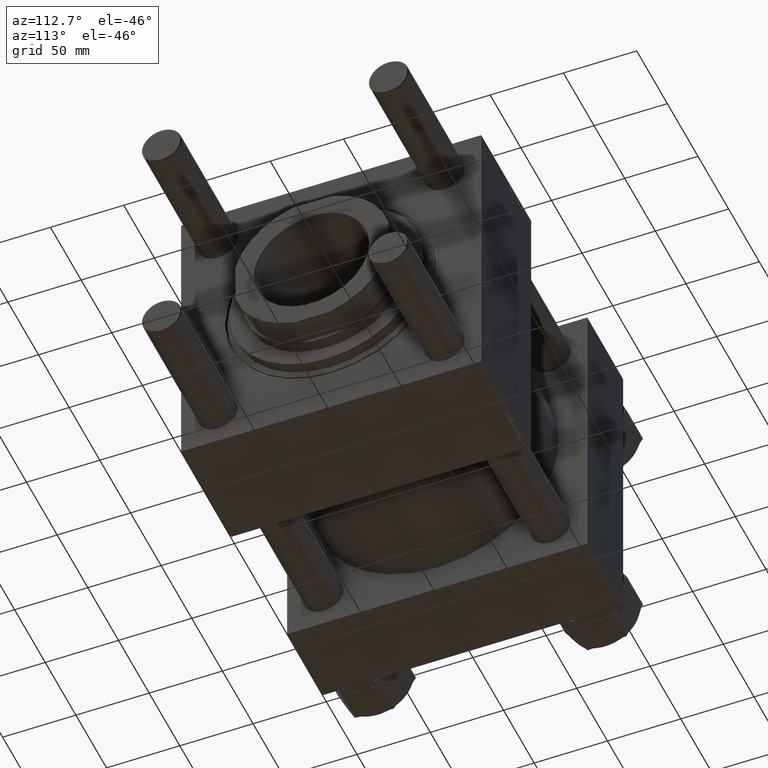
[diagram: clean part render]
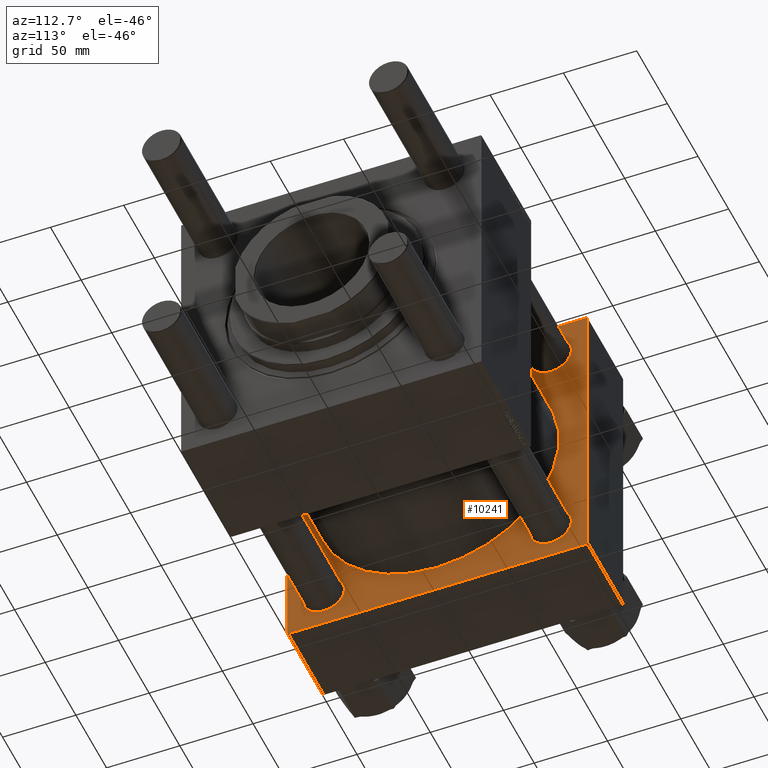
[diagram: same view with one face highlighted and labeled with its STEP entity id]
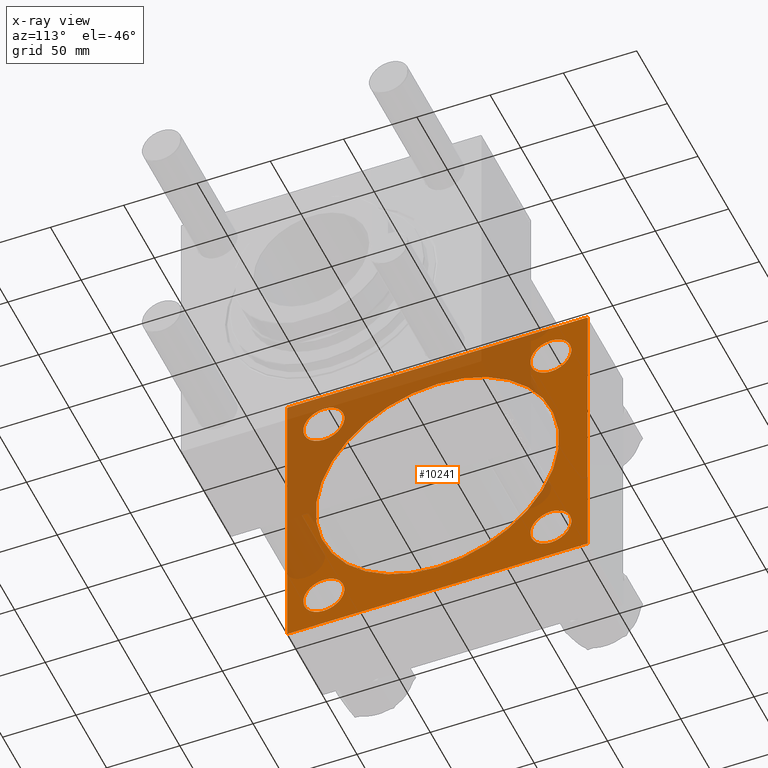
[diagram: x-ray of the same camera — body ghosted, the highlighted face saturated]
A machine part, auxiliary view. The second image highlights one B-rep face of the part: STEP entity #10241.
The next image is the same camera in x-ray: the body ghosted, the highlighted face saturated — about 43% of this face is hidden behind the body in this view.
In plain terms, the highlighted planar face has unit normal (-1, 0, 0).
Its self-contained STEP definition (entity closure, byte-faithful):
#520 = CARTESIAN_POINT ( 'NONE',  ( 58.00000000000000000, -101.9999999999999147, 102.5000000000000000 ) ) ;
#1236 = ORIENTED_EDGE ( 'NONE', *, *, #1803, .T. ) ;
#1621 = ORIENTED_EDGE ( 'NONE', *, *, #54866, .T. ) ;
#1803 = EDGE_CURVE ( 'NONE', #18293, #57033, #45750, .T. ) ;
#2307 = EDGE_LOOP ( 'NONE', ( #53652, #6406 ) ) ;
#2427 = AXIS2_PLACEMENT_3D ( 'NONE', #40914, #40352, #36013 ) ;
#2539 = EDGE_CURVE ( 'NONE', #17715, #33376, #13695, .T. ) ;
#3229 = AXIS2_PLACEMENT_3D ( 'NONE', #56046, #16404, #25377 ) ;
#3384 = CIRCLE ( 'NONE', #34810, 13.99999999999979039 ) ;
#3720 = PLANE ( 'NONE',  #33292 ) ;
#4241 = EDGE_LOOP ( 'NONE', ( #39235, #32686, #34683, #34279, #47452, #1621, #21113, #1236 ) ) ;
#4585 = LINE ( 'NONE', #22827, #5696 ) ;
#4822 = DIRECTION ( 'NONE',  ( 0.000000000000000000, 0.000000000000000000, 1.000000000000000000 ) ) ;
#4973 = CARTESIAN_POINT ( 'NONE',  ( 58.00000000000000000, -101.9999999999999432, -102.5000000000000000 ) ) ;
#5147 = DIRECTION ( 'NONE',  ( 0.000000000000000000, 0.000000000000000000, 1.000000000000000000 ) ) ;
#5165 = LINE ( 'NONE', #22831, #46475 ) ;
#5696 = VECTOR ( 'NONE', #40202, 1000.000000000000114 ) ;
#5759 = ORIENTED_EDGE ( 'NONE', *, *, #36333, .T. ) ;
#6406 = ORIENTED_EDGE ( 'NONE', *, *, #30487, .F. ) ;
#6607 = CIRCLE ( 'NONE', #26986, 13.99999999999979039 ) ;
#8065 = CARTESIAN_POINT ( 'NONE',  ( 58.00000000000000000, 0.000000000000000000, 0.000000000000000000 ) ) ;
#8290 = DIRECTION ( 'NONE',  ( 0.000000000000000000, 0.000000000000000000, 1.000000000000000000 ) ) ;
#9291 = AXIS2_PLACEMENT_3D ( 'NONE', #13273, #12716, #39912 ) ;
#9597 = CARTESIAN_POINT ( 'NONE',  ( 57.99999999999999289, 7.562483218957820855E-15, -83.00000000000000000 ) ) ;
#9768 = DIRECTION ( 'NONE',  ( -1.000000000000000000, 0.000000000000000000, 0.000000000000000000 ) ) ;
#10241 = ADVANCED_FACE ( 'NONE', ( #52056, #47714, #29794, #12413, #34995, #51775 ), #3720, .F. ) ;
#10323 = VECTOR ( 'NONE', #40089, 1000.000000000000000 ) ;
#10603 = AXIS2_PLACEMENT_3D ( 'NONE', #12361, #56067, #8290 ) ;
#10774 = EDGE_CURVE ( 'NONE', #33376, #51628, #55048, .T. ) ;
#11062 = CARTESIAN_POINT ( 'NONE',  ( 58.00000000000000000, 102.5000000000000284, 102.5000000000000284 ) ) ;
#11936 = EDGE_CURVE ( 'NONE', #17646, #35854, #37028, .T. ) ;
#12361 = CARTESIAN_POINT ( 'NONE',  ( 58.00000000000000000, -77.44999999999996021, 77.45000000000003126 ) ) ;
#12413 = FACE_BOUND ( 'NONE', #17548, .T. ) ;
#12540 = EDGE_CURVE ( 'NONE', #22166, #47352, #42584, .T. ) ;
#12638 = AXIS2_PLACEMENT_3D ( 'NONE', #22779, #27686, #4822 ) ;
#12696 = DIRECTION ( 'NONE',  ( -1.000000000000000000, 0.000000000000000000, 0.000000000000000000 ) ) ;
#12716 = DIRECTION ( 'NONE',  ( -1.000000000000000000, 0.000000000000000000, 0.000000000000000000 ) ) ;
#12781 = CARTESIAN_POINT ( 'NONE',  ( 58.00000000000000000, 77.44999999999998863, 77.45000000000001705 ) ) ;
#12967 = AXIS2_PLACEMENT_3D ( 'NONE', #28328, #27752, #45389 ) ;
#13273 = CARTESIAN_POINT ( 'NONE',  ( 58.00000000000000000, 77.44999999999998863, -77.45000000000001705 ) ) ;
#13386 = ORIENTED_EDGE ( 'NONE', *, *, #39832, .T. ) ;
#13410 = DIRECTION ( 'NONE',  ( 0.000000000000000000, -0.7071067811865474617, 0.7071067811865474617 ) ) ;
#13695 = LINE ( 'NONE', #40907, #38808 ) ;
#16036 = LINE ( 'NONE', #55384, #47793 ) ;
#16133 = CARTESIAN_POINT ( 'NONE',  ( 58.00000000000000000, 102.0000000000000142, -102.4999999999999716 ) ) ;
#16339 = EDGE_CURVE ( 'NONE', #46490, #31109, #6607, .T. ) ;
#16404 = DIRECTION ( 'NONE',  ( 1.000000000000000000, -0.000000000000000000, -0.000000000000000000 ) ) ;
#17052 = DIRECTION ( 'NONE',  ( 0.000000000000000000, -1.353930517835556973E-16, -1.000000000000000000 ) ) ;
#17086 = CIRCLE ( 'NONE', #10603, 13.99999999999979039 ) ;
#17548 = EDGE_LOOP ( 'NONE', ( #5759, #43571 ) ) ;
#17646 = VERTEX_POINT ( 'NONE', #35334 ) ;
#17715 = VERTEX_POINT ( 'NONE', #30986 ) ;
#18293 = VERTEX_POINT ( 'NONE', #29822 ) ;
#18450 = CARTESIAN_POINT ( 'NONE',  ( 58.00000000000000000, -77.44999999999996021, 63.45000000000024443 ) ) ;
#18456 = CARTESIAN_POINT ( 'NONE',  ( 58.00000000000000000, -77.44999999999996021, -77.45000000000003126 ) ) ;
#18920 = CIRCLE ( 'NONE', #3229, 83.00000000000000000 ) ;
#19333 = VERTEX_POINT ( 'NONE', #40859 ) ;
#19647 = EDGE_LOOP ( 'NONE', ( #27070, #35818 ) ) ;
#19800 = DIRECTION ( 'NONE',  ( 0.000000000000000000, 0.000000000000000000, -1.000000000000000000 ) ) ;
#20005 = CIRCLE ( 'NONE', #44949, 13.99999999999979039 ) ;
#20199 = EDGE_CURVE ( 'NONE', #51685, #57033, #43858, .T. ) ;
#21027 = VERTEX_POINT ( 'NONE', #28393 ) ;
#21113 = ORIENTED_EDGE ( 'NONE', *, *, #24958, .T. ) ;
#21958 = DIRECTION ( 'NONE',  ( 0.000000000000000000, 0.000000000000000000, 1.000000000000000000 ) ) ;
#22020 = CARTESIAN_POINT ( 'NONE',  ( 58.00000000000000000, 77.44999999999998863, 91.44999999999980389 ) ) ;
#22166 = VERTEX_POINT ( 'NONE', #39291 ) ;
#22779 = CARTESIAN_POINT ( 'NONE',  ( 58.00000000000000000, 77.44999999999998863, 77.45000000000001705 ) ) ;
#22816 = DIRECTION ( 'NONE',  ( 0.000000000000000000, 0.000000000000000000, 1.000000000000000000 ) ) ;
#22827 = CARTESIAN_POINT ( 'NONE',  ( 58.00000000000000000, 102.5000000000000284, -101.9999999999999716 ) ) ;
#22831 = CARTESIAN_POINT ( 'NONE',  ( 58.00000000000000000, -102.4999999999999716, 102.5000000000000000 ) ) ;
#24016 = VECTOR ( 'NONE', #33670, 1000.000000000000000 ) ;
#24958 = EDGE_CURVE ( 'NONE', #21027, #18293, #5165, .T. ) ;
#25377 = DIRECTION ( 'NONE',  ( 0.000000000000000000, 0.000000000000000000, 1.000000000000000000 ) ) ;
#25743 = VERTEX_POINT ( 'NONE', #33618 ) ;
#26366 = LINE ( 'NONE', #26929, #34635 ) ;
#26929 = CARTESIAN_POINT ( 'NONE',  ( 58.00000000000000000, -102.4999999999999716, 102.0000000000000000 ) ) ;
#26986 = AXIS2_PLACEMENT_3D ( 'NONE', #51342, #29367, #37452 ) ;
#27070 = ORIENTED_EDGE ( 'NONE', *, *, #34850, .T. ) ;
#27266 = DIRECTION ( 'NONE',  ( 0.000000000000000000, 0.7071067811865474617, -0.7071067811865474617 ) ) ;
#27686 = DIRECTION ( 'NONE',  ( -1.000000000000000000, 0.000000000000000000, 0.000000000000000000 ) ) ;
#27752 = DIRECTION ( 'NONE',  ( 1.000000000000000000, -0.000000000000000000, -0.000000000000000000 ) ) ;
#28328 = CARTESIAN_POINT ( 'NONE',  ( 57.99999999999999289, -2.602085213965210642E-15, 0.000000000000000000 ) ) ;
#28393 = CARTESIAN_POINT ( 'NONE',  ( 58.00000000000000000, -102.4999999999999716, 102.0000000000000000 ) ) ;
#29313 = EDGE_LOOP ( 'NONE', ( #56182, #56289 ) ) ;
#29367 = DIRECTION ( 'NONE',  ( -1.000000000000000000, 0.000000000000000000, 0.000000000000000000 ) ) ;
#29794 = FACE_BOUND ( 'NONE', #19647, .T. ) ;
#29822 = CARTESIAN_POINT ( 'NONE',  ( 58.00000000000000000, -102.5000000000000000, -101.9999999999998863 ) ) ;
#30487 = EDGE_CURVE ( 'NONE', #47352, #22166, #18920, .T. ) ;
#30986 = CARTESIAN_POINT ( 'NONE',  ( 58.00000000000000000, 102.5000000000000284, 102.0000000000000142 ) ) ;
#31109 = VERTEX_POINT ( 'NONE', #39686 ) ;
#32686 = ORIENTED_EDGE ( 'NONE', *, *, #43394, .T. ) ;
#32927 = CARTESIAN_POINT ( 'NONE',  ( 58.00000000000000000, 77.44999999999998863, -77.45000000000001705 ) ) ;
#33292 = AXIS2_PLACEMENT_3D ( 'NONE', #8065, #12696, #21958 ) ;
#33376 = VERTEX_POINT ( 'NONE', #51911 ) ;
#33618 = CARTESIAN_POINT ( 'NONE',  ( 58.00000000000000000, 102.5000000000000284, -101.9999999999999147 ) ) ;
#33670 = DIRECTION ( 'NONE',  ( 0.000000000000000000, -1.000000000000000000, -1.353930517835556973E-16 ) ) ;
#34279 = ORIENTED_EDGE ( 'NONE', *, *, #2539, .T. ) ;
#34635 = VECTOR ( 'NONE', #40540, 1000.000000000000114 ) ;
#34683 = ORIENTED_EDGE ( 'NONE', *, *, #37031, .F. ) ;
#34810 = AXIS2_PLACEMENT_3D ( 'NONE', #18456, #9768, #5147 ) ;
#34850 = EDGE_CURVE ( 'NONE', #37903, #46064, #50472, .T. ) ;
#34995 = FACE_BOUND ( 'NONE', #2307, .T. ) ;
#35029 = EDGE_CURVE ( 'NONE', #38290, #19333, #56025, .T. ) ;
#35334 = CARTESIAN_POINT ( 'NONE',  ( 58.00000000000000000, 77.44999999999998863, -91.44999999999980389 ) ) ;
#35818 = ORIENTED_EDGE ( 'NONE', *, *, #56360, .T. ) ;
#35854 = VERTEX_POINT ( 'NONE', #52434 ) ;
#36013 = DIRECTION ( 'NONE',  ( 0.000000000000000000, 0.000000000000000000, 1.000000000000000000 ) ) ;
#36333 = EDGE_CURVE ( 'NONE', #19333, #38290, #38534, .T. ) ;
#37028 = CIRCLE ( 'NONE', #9291, 13.99999999999979039 ) ;
#37031 = EDGE_CURVE ( 'NONE', #17715, #25743, #16036, .T. ) ;
#37065 = CARTESIAN_POINT ( 'NONE',  ( 58.00000000000000000, -101.9999999999999432, -102.5000000000000000 ) ) ;
#37452 = DIRECTION ( 'NONE',  ( 0.000000000000000000, 0.000000000000000000, 1.000000000000000000 ) ) ;
#37903 = VERTEX_POINT ( 'NONE', #18450 ) ;
#38125 = ORIENTED_EDGE ( 'NONE', *, *, #16339, .T. ) ;
#38290 = VERTEX_POINT ( 'NONE', #22020 ) ;
#38534 = CIRCLE ( 'NONE', #12638, 13.99999999999979039 ) ;
#38808 = VECTOR ( 'NONE', #13410, 1000.000000000000114 ) ;
#39235 = ORIENTED_EDGE ( 'NONE', *, *, #20199, .F. ) ;
#39291 = CARTESIAN_POINT ( 'NONE',  ( 57.99999999999999289, -2.602085213965210642E-15, 83.00000000000000000 ) ) ;
#39514 = CARTESIAN_POINT ( 'NONE',  ( 58.00000000000000000, 102.5000000000000284, -102.4999999999999716 ) ) ;
#39625 = CARTESIAN_POINT ( 'NONE',  ( 58.00000000000000000, -77.44999999999996021, -91.44999999999981810 ) ) ;
#39686 = CARTESIAN_POINT ( 'NONE',  ( 58.00000000000000000, -77.44999999999996021, -63.45000000000024443 ) ) ;
#39832 = EDGE_CURVE ( 'NONE', #31109, #46490, #3384, .T. ) ;
#39837 = EDGE_CURVE ( 'NONE', #35854, #17646, #20005, .T. ) ;
#39912 = DIRECTION ( 'NONE',  ( 0.000000000000000000, 0.000000000000000000, 1.000000000000000000 ) ) ;
#40089 = DIRECTION ( 'NONE',  ( 0.000000000000000000, -1.000000000000000000, -1.353930517835556727E-16 ) ) ;
#40202 = DIRECTION ( 'NONE',  ( -0.000000000000000000, 0.7071067811865474617, 0.7071067811865474617 ) ) ;
#40352 = DIRECTION ( 'NONE',  ( -1.000000000000000000, 0.000000000000000000, 0.000000000000000000 ) ) ;
#40540 = DIRECTION ( 'NONE',  ( -0.000000000000000000, -0.7071067811865474617, -0.7071067811865474617 ) ) ;
#40859 = CARTESIAN_POINT ( 'NONE',  ( 58.00000000000000000, 77.44999999999998863, 63.45000000000023022 ) ) ;
#40907 = CARTESIAN_POINT ( 'NONE',  ( 58.00000000000000000, 102.0000000000000142, 102.5000000000000284 ) ) ;
#40914 = CARTESIAN_POINT ( 'NONE',  ( 58.00000000000000000, -77.44999999999996021, 77.45000000000003126 ) ) ;
#42584 = CIRCLE ( 'NONE', #12967, 83.00000000000000000 ) ;
#43104 = AXIS2_PLACEMENT_3D ( 'NONE', #12781, #48372, #43474 ) ;
#43394 = EDGE_CURVE ( 'NONE', #51685, #25743, #4585, .T. ) ;
#43474 = DIRECTION ( 'NONE',  ( 0.000000000000000000, 0.000000000000000000, 1.000000000000000000 ) ) ;
#43571 = ORIENTED_EDGE ( 'NONE', *, *, #35029, .T. ) ;
#43858 = LINE ( 'NONE', #39514, #10323 ) ;
#44286 = VECTOR ( 'NONE', #27266, 1000.000000000000114 ) ;
#44949 = AXIS2_PLACEMENT_3D ( 'NONE', #32927, #54045, #22816 ) ;
#45389 = DIRECTION ( 'NONE',  ( 0.000000000000000000, 0.000000000000000000, 1.000000000000000000 ) ) ;
#45750 = LINE ( 'NONE', #4973, #44286 ) ;
#46064 = VERTEX_POINT ( 'NONE', #53989 ) ;
#46475 = VECTOR ( 'NONE', #17052, 1000.000000000000000 ) ;
#46490 = VERTEX_POINT ( 'NONE', #39625 ) ;
#47352 = VERTEX_POINT ( 'NONE', #9597 ) ;
#47452 = ORIENTED_EDGE ( 'NONE', *, *, #10774, .T. ) ;
#47714 = FACE_BOUND ( 'NONE', #29313, .T. ) ;
#47793 = VECTOR ( 'NONE', #19800, 1000.000000000000000 ) ;
#48372 = DIRECTION ( 'NONE',  ( -1.000000000000000000, 0.000000000000000000, 0.000000000000000000 ) ) ;
#50472 = CIRCLE ( 'NONE', #2427, 13.99999999999979039 ) ;
#50870 = EDGE_LOOP ( 'NONE', ( #38125, #13386 ) ) ;
#51342 = CARTESIAN_POINT ( 'NONE',  ( 58.00000000000000000, -77.44999999999996021, -77.45000000000003126 ) ) ;
#51628 = VERTEX_POINT ( 'NONE', #520 ) ;
#51685 = VERTEX_POINT ( 'NONE', #16133 ) ;
#51775 = FACE_OUTER_BOUND ( 'NONE', #4241, .T. ) ;
#51911 = CARTESIAN_POINT ( 'NONE',  ( 58.00000000000000000, 102.0000000000000142, 102.5000000000000284 ) ) ;
#52056 = FACE_BOUND ( 'NONE', #50870, .T. ) ;
#52434 = CARTESIAN_POINT ( 'NONE',  ( 58.00000000000000000, 77.44999999999998863, -63.45000000000023022 ) ) ;
#53652 = ORIENTED_EDGE ( 'NONE', *, *, #12540, .F. ) ;
#53989 = CARTESIAN_POINT ( 'NONE',  ( 58.00000000000000000, -77.44999999999996021, 91.44999999999981810 ) ) ;
#54045 = DIRECTION ( 'NONE',  ( -1.000000000000000000, 0.000000000000000000, 0.000000000000000000 ) ) ;
#54866 = EDGE_CURVE ( 'NONE', #51628, #21027, #26366, .T. ) ;
#55048 = LINE ( 'NONE', #11062, #24016 ) ;
#55384 = CARTESIAN_POINT ( 'NONE',  ( 58.00000000000000000, 102.5000000000000284, 102.5000000000000284 ) ) ;
#56025 = CIRCLE ( 'NONE', #43104, 13.99999999999979039 ) ;
#56046 = CARTESIAN_POINT ( 'NONE',  ( 57.99999999999999289, -2.602085213965210642E-15, 0.000000000000000000 ) ) ;
#56067 = DIRECTION ( 'NONE',  ( -1.000000000000000000, 0.000000000000000000, 0.000000000000000000 ) ) ;
#56182 = ORIENTED_EDGE ( 'NONE', *, *, #11936, .T. ) ;
#56289 = ORIENTED_EDGE ( 'NONE', *, *, #39837, .T. ) ;
#56360 = EDGE_CURVE ( 'NONE', #46064, #37903, #17086, .T. ) ;
#57033 = VERTEX_POINT ( 'NONE', #37065 ) ;